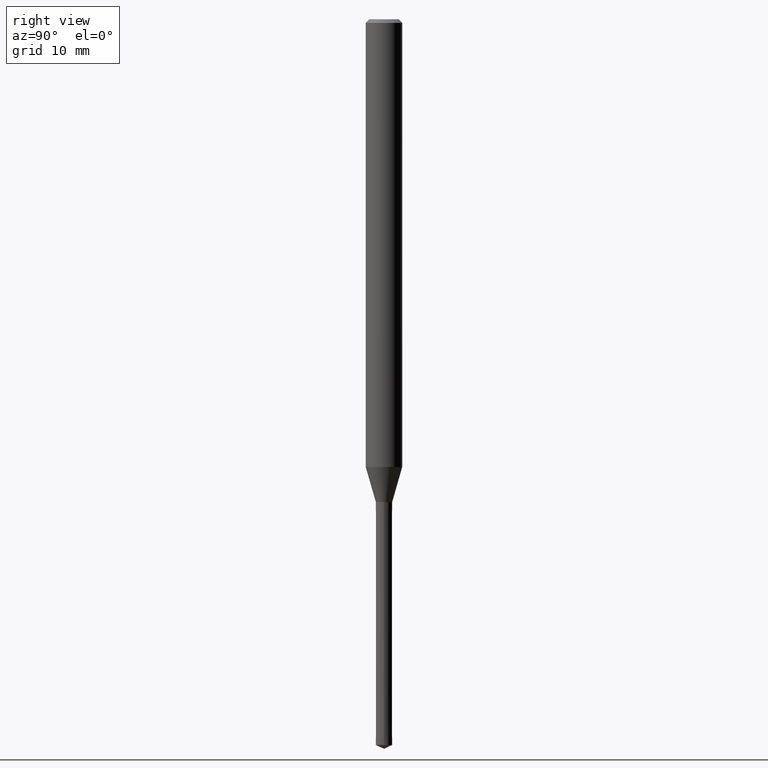
[diagram: clean part render]
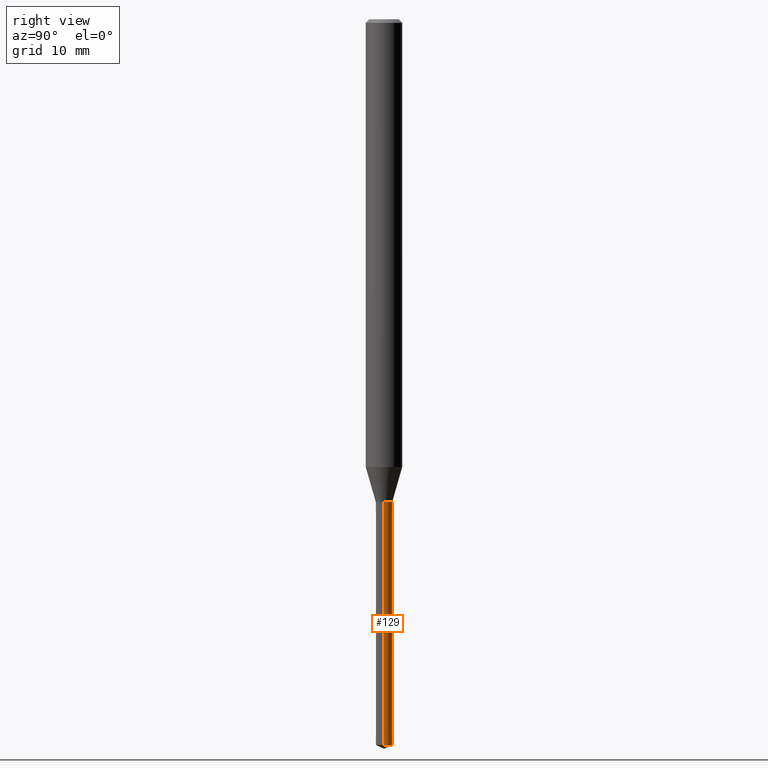
[diagram: same view with one face highlighted and labeled with its STEP entity id]
A machine part, right view. The second image highlights one B-rep face of the part: STEP entity #129.
In plain terms, the highlighted conical surface has half-angle 0.003 deg.
Its self-contained STEP definition (entity closure, byte-faithful):
#93=VERTEX_POINT('',#228);
#97=EDGE_CURVE('',#93,#183,#232,.T.);
#129=ADVANCED_FACE('',(#270),#271,.T.);
#147=EDGE_CURVE('',#159,#177,#291,.T.);
#151=EDGE_CURVE('',#159,#183,#295,.T.);
#159=VERTEX_POINT('',#304);
#177=VERTEX_POINT('',#323);
#181=EDGE_CURVE('',#177,#93,#327,.T.);
#183=VERTEX_POINT('',#329);
#228=CARTESIAN_POINT('',(0.675,8.26609288830105E-017,-59.68524233));
#232=LINE('',#377,#378);
#270=FACE_OUTER_BOUND('',#421,.T.);
#271=CONICAL_SURFACE('',#422,0.6755,5.00369213769467E-005);
#291=LINE('',#449,#450);
#295=CIRCLE('',#456,0.676);
#304=CARTESIAN_POINT('',(-0.676,0.0,-39.7));
#323=CARTESIAN_POINT('',(-0.675,0.0,-59.68524233));
#327=CIRCLE('',#501,0.675);
#329=CARTESIAN_POINT('',(0.676,8.27833895183927E-017,-39.7));
#377=CARTESIAN_POINT('',(0.6755,8.27221592007016E-017,-49.692621165));
#378=VECTOR('',#541,1.0);
#421=EDGE_LOOP('',(#600,#601,#602,#603));
#422=AXIS2_PLACEMENT_3D('',#604,#605,#606);
#449=CARTESIAN_POINT('',(-0.6755,-8.27221592007016E-017,-49.692621165));
#450=VECTOR('',#629,1.0);
#456=AXIS2_PLACEMENT_3D('',#633,#634,#635);
#501=AXIS2_PLACEMENT_3D('',#663,#664,#665);
#541=DIRECTION('',(5.00369213560671E-005,6.12755318183504E-021,0.999999998748153));
#600=ORIENTED_EDGE('',*,*,#147,.F.);
#601=ORIENTED_EDGE('',*,*,#151,.T.);
#602=ORIENTED_EDGE('',*,*,#97,.F.);
#603=ORIENTED_EDGE('',*,*,#181,.F.);
#604=CARTESIAN_POINT('',(0.0,0.0,-49.692621165));
#605=DIRECTION('',(-0.0,-0.0,1.0));
#606=DIRECTION('',(-1.0,0.0,0.0));
#629=DIRECTION('',(5.00369213560671E-005,6.12755318183504E-021,-0.999999998748153));
#633=CARTESIAN_POINT('',(0.0,0.0,-39.7));
#634=DIRECTION('',(0.0,0.0,-1.0));
#635=DIRECTION('',(-1.0,0.0,0.0));
#663=CARTESIAN_POINT('',(0.0,0.0,-59.68524233));
#664=DIRECTION('',(0.0,0.0,-1.0));
#665=DIRECTION('',(-1.0,0.0,0.0));